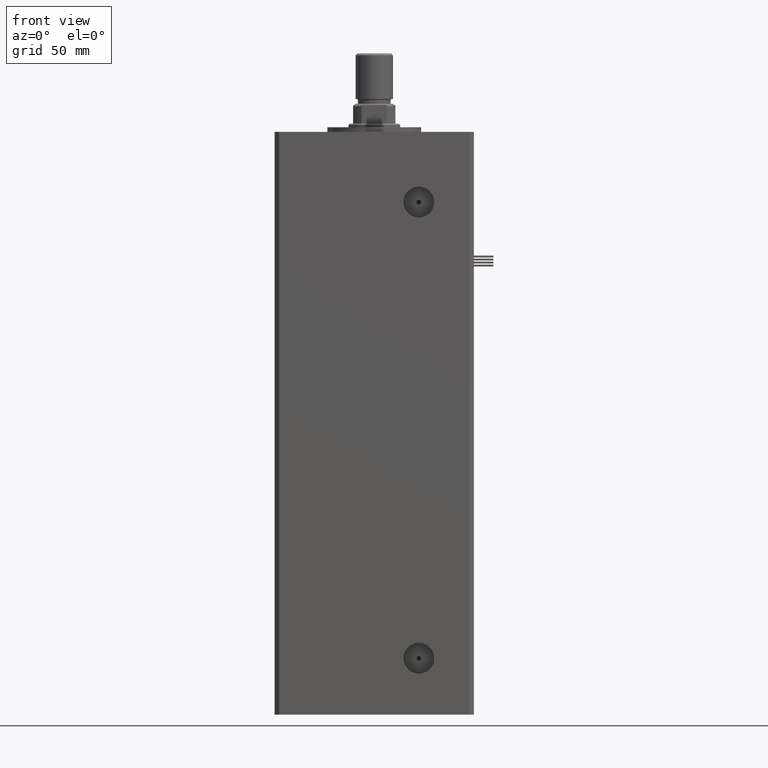
[diagram: clean part render]
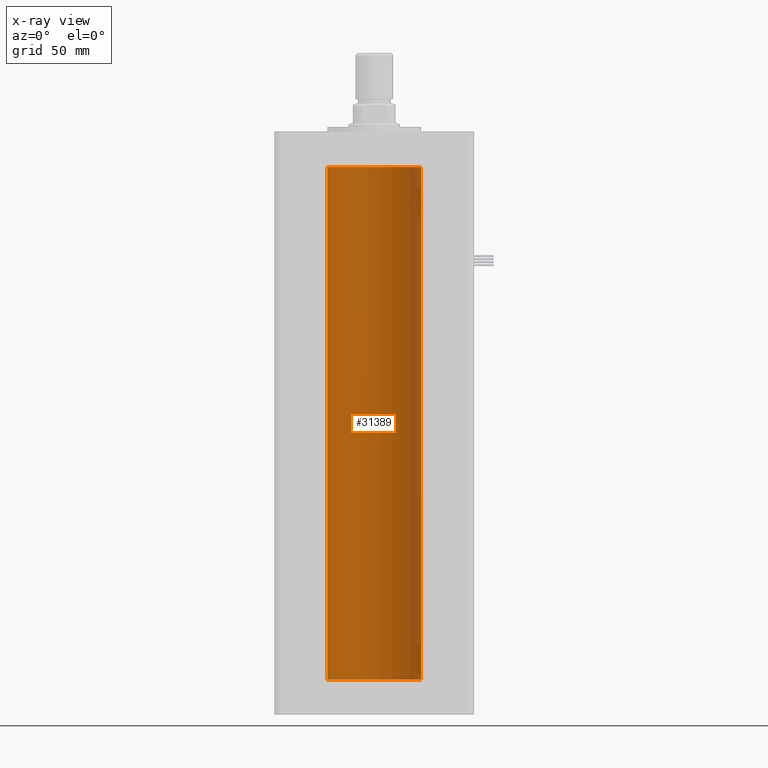
[diagram: x-ray — body ghosted, one internal face saturated and labeled with its STEP entity id]
A machine part, front view, then the same camera in x-ray: the body is ghosted and one INTERNAL B-rep face — a face not visible from any outside direction — is saturated and labeled: STEP entity #31389.
In plain terms, the highlighted cylindrical surface (partial cylindrical patch) has radius 20 mm, axis along (-0, -0, -1).
Its self-contained STEP definition (entity closure, byte-faithful):
#92 = AXIS2_PLACEMENT_3D ( 'NONE', #36968, #28248, #45415 ) ;
#1275 = ORIENTED_EDGE ( 'NONE', *, *, #39037, .T. ) ;
#2977 = EDGE_LOOP ( 'NONE', ( #30268, #41394, #1275, #54448 ) ) ;
#3589 = CARTESIAN_POINT ( 'NONE',  ( 20.00000000000000000, 2.449293598294706513E-15, 218.5000000000000000 ) ) ;
#8264 = FACE_OUTER_BOUND ( 'NONE', #2977, .T. ) ;
#9441 = LINE ( 'NONE', #17893, #37478 ) ;
#10846 = DIRECTION ( 'NONE',  ( -0.000000000000000000, -0.000000000000000000, -1.000000000000000000 ) ) ;
#14506 = VERTEX_POINT ( 'NONE', #23362 ) ;
#15551 = AXIS2_PLACEMENT_3D ( 'NONE', #24236, #20282, #45628 ) ;
#16720 = DIRECTION ( 'NONE',  ( -1.000000000000000000, 0.000000000000000000, 0.000000000000000000 ) ) ;
#16995 = DIRECTION ( 'NONE',  ( -0.000000000000000000, -0.000000000000000000, -1.000000000000000000 ) ) ;
#17810 = EDGE_CURVE ( 'NONE', #39605, #23373, #9441, .T. ) ;
#17893 = CARTESIAN_POINT ( 'NONE',  ( 20.00000000000000000, 2.449293598294706513E-15, 218.5000000000000000 ) ) ;
#19845 = CARTESIAN_POINT ( 'NONE',  ( -20.00000000000000000, 0.000000000000000000, 218.5000000000000000 ) ) ;
#20282 = DIRECTION ( 'NONE',  ( -0.000000000000000000, 0.000000000000000000, 1.000000000000000000 ) ) ;
#23362 = CARTESIAN_POINT ( 'NONE',  ( -20.00000000000000000, 0.000000000000000000, 218.5000000000000000 ) ) ;
#23373 = VERTEX_POINT ( 'NONE', #36715 ) ;
#24236 = CARTESIAN_POINT ( 'NONE',  ( 0.000000000000000000, 0.000000000000000000, 218.5000000000000000 ) ) ;
#24868 = CARTESIAN_POINT ( 'NONE',  ( -20.00000000000000000, 0.000000000000000000, 0.000000000000000000 ) ) ;
#28248 = DIRECTION ( 'NONE',  ( -0.000000000000000000, 0.000000000000000000, 1.000000000000000000 ) ) ;
#29043 = CIRCLE ( 'NONE', #15551, 20.00000000000000000 ) ;
#30268 = ORIENTED_EDGE ( 'NONE', *, *, #17810, .F. ) ;
#31389 = ADVANCED_FACE ( 'NONE', ( #8264 ), #54740, .F. ) ;
#35055 = DIRECTION ( 'NONE',  ( -0.000000000000000000, -0.000000000000000000, -1.000000000000000000 ) ) ;
#36715 = CARTESIAN_POINT ( 'NONE',  ( 20.00000000000000000, 2.449293598294706513E-15, 0.000000000000000000 ) ) ;
#36968 = CARTESIAN_POINT ( 'NONE',  ( 0.000000000000000000, 0.000000000000000000, 0.000000000000000000 ) ) ;
#37478 = VECTOR ( 'NONE', #35055, 1000.000000000000000 ) ;
#39037 = EDGE_CURVE ( 'NONE', #14506, #44475, #55024, .T. ) ;
#39605 = VERTEX_POINT ( 'NONE', #3589 ) ;
#40888 = EDGE_CURVE ( 'NONE', #23373, #44475, #51306, .T. ) ;
#41394 = ORIENTED_EDGE ( 'NONE', *, *, #47345, .T. ) ;
#44475 = VERTEX_POINT ( 'NONE', #24868 ) ;
#45415 = DIRECTION ( 'NONE',  ( 1.000000000000000000, 0.000000000000000000, 0.000000000000000000 ) ) ;
#45628 = DIRECTION ( 'NONE',  ( 1.000000000000000000, 0.000000000000000000, 0.000000000000000000 ) ) ;
#47345 = EDGE_CURVE ( 'NONE', #39605, #14506, #29043, .T. ) ;
#48538 = VECTOR ( 'NONE', #10846, 1000.000000000000000 ) ;
#51306 = CIRCLE ( 'NONE', #92, 20.00000000000000000 ) ;
#51606 = CARTESIAN_POINT ( 'NONE',  ( 0.000000000000000000, 0.000000000000000000, 218.5000000000000000 ) ) ;
#51966 = AXIS2_PLACEMENT_3D ( 'NONE', #51606, #16995, #16720 ) ;
#54448 = ORIENTED_EDGE ( 'NONE', *, *, #40888, .F. ) ;
#54740 = CYLINDRICAL_SURFACE ( 'NONE', #51966, 20.00000000000000000 ) ;
#55024 = LINE ( 'NONE', #19845, #48538 ) ;